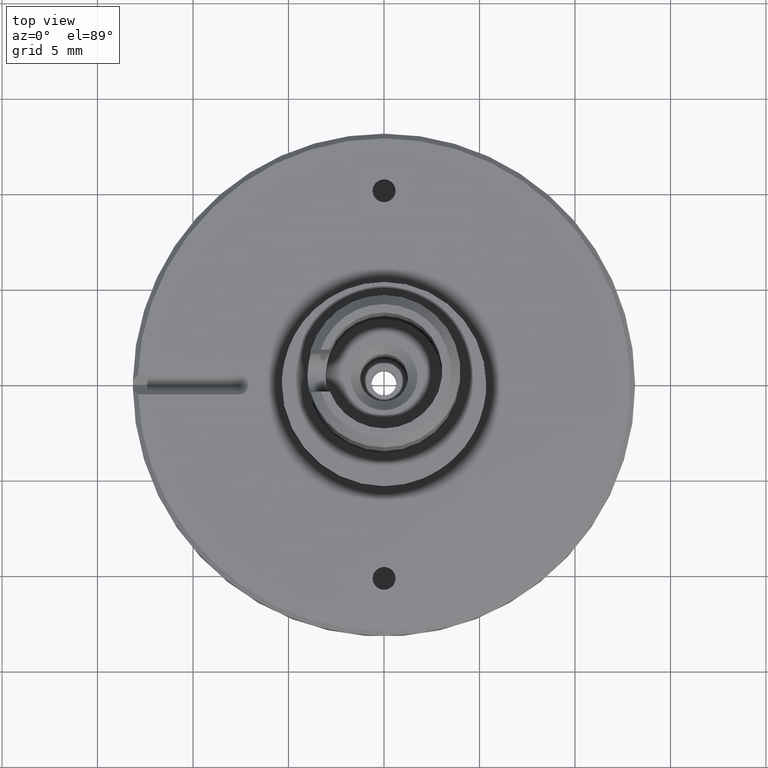
[diagram: clean part render]
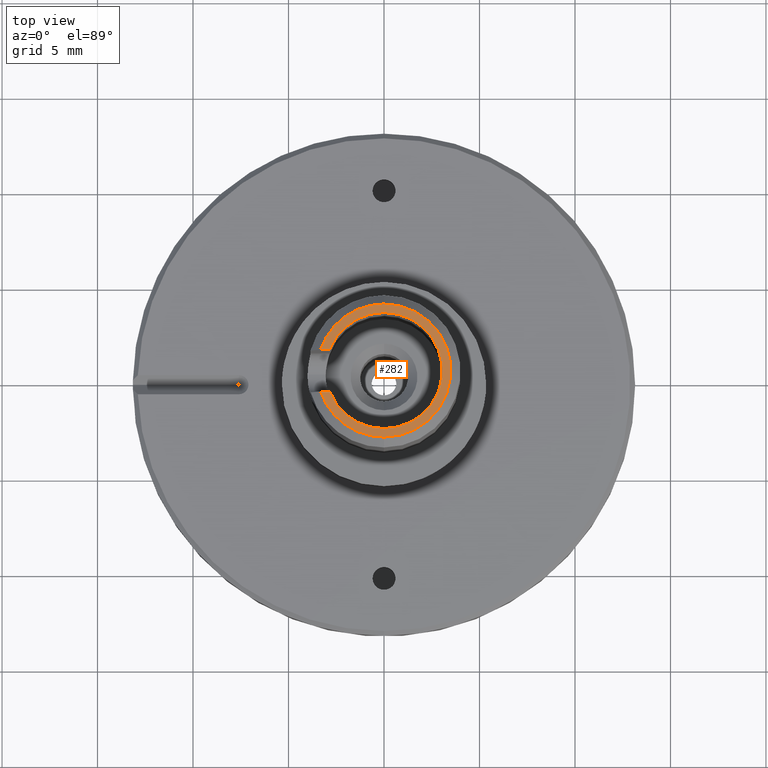
[diagram: same view with one face highlighted and labeled with its STEP entity id]
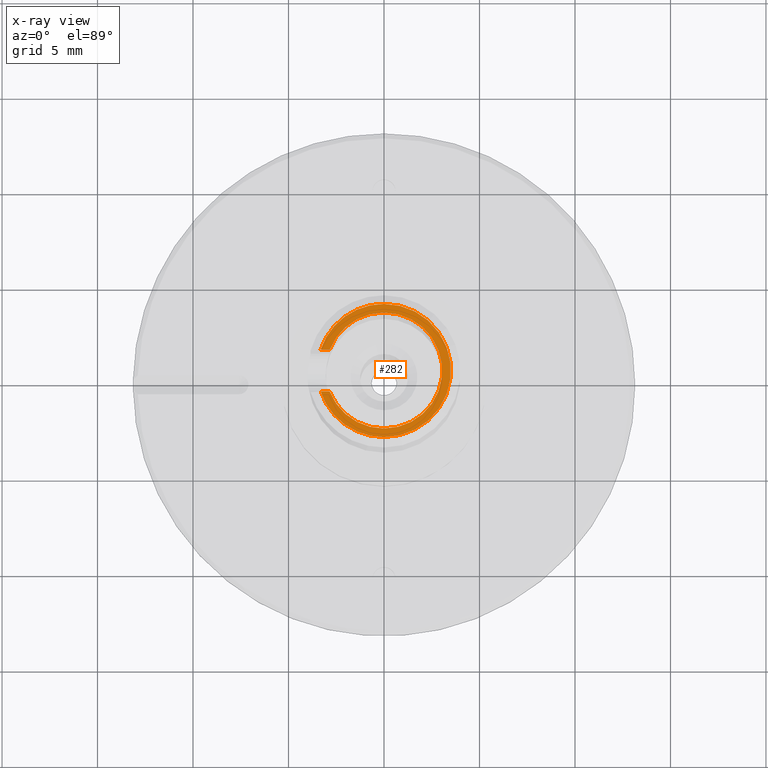
[diagram: x-ray of the same camera — body ghosted, the highlighted face saturated]
A machine part, top view. The second image highlights one B-rep face of the part: STEP entity #282.
The next image is the same camera in x-ray: the body ghosted, the highlighted face saturated — about 0% of this face is hidden behind the body in this view.
In plain terms, the highlighted planar face has unit normal (-0, 0.0706, 0.9975).
Its self-contained STEP definition (entity closure, byte-faithful):
#23 = ORIENTED_EDGE ( 'NONE', *, *, #1702, .T. ) ;
#31 = VERTEX_POINT ( 'NONE', #1358 ) ;
#52 = EDGE_CURVE ( 'NONE', #1645, #31, #1005, .T. ) ;
#55 = CARTESIAN_POINT ( 'NONE',  ( 4.286263796478413357E-16, -2.861962109038564517, 9.135103017454950347 ) ) ;
#59 = CARTESIAN_POINT ( 'NONE',  ( 0.08867522749999982856, -0.4679553973408257517, 8.965598251419219622 ) ) ;
#60 = DIRECTION ( 'NONE',  ( 0.000000000000000000, -0.9975027964197471508, 0.07062698588205740258 ) ) ;
#74 = DIRECTION ( 'NONE',  ( -0.000000000000000000, 0.07062698593101959799, 0.9975027964162804794 ) ) ;
#141 = CARTESIAN_POINT ( 'NONE',  ( 7.624983033006734675E-30, 0.6292976779807042398, 8.887908566727491078 ) ) ;
#188 = CARTESIAN_POINT ( 'NONE',  ( -3.322649544717420689, -0.4679553976612461086, 8.965598251339075730 ) ) ;
#197 = DIRECTION ( 'NONE',  ( 1.000000000000000000, 0.000000000000000000, 0.000000000000000000 ) ) ;
#205 = CIRCLE ( 'NONE', #1151, 3.499999999561182129 ) ;
#220 = ORIENTED_EDGE ( 'NONE', *, *, #1582, .T. ) ;
#245 = CARTESIAN_POINT ( 'NONE',  ( 0.000000000000000000, 0.6292976775073111373, 8.887908566950203593 ) ) ;
#258 = ORIENTED_EDGE ( 'NONE', *, *, #527, .T. ) ;
#282 = ADVANCED_FACE ( 'NONE', ( #708 ), #1251, .T. ) ;
#289 = EDGE_CURVE ( 'NONE', #1327, #1645, #609, .T. ) ;
#296 = LINE ( 'NONE', #1004, #1246 ) ;
#302 = VERTEX_POINT ( 'NONE', #55 ) ;
#331 = DIRECTION ( 'NONE',  ( -1.000000000000000000, -0.000000000000000000, -0.000000000000000000 ) ) ;
#344 = LINE ( 'NONE', #59, #641 ) ;
#351 = AXIS2_PLACEMENT_3D ( 'NONE', #141, #936, #972 ) ;
#417 = VERTEX_POINT ( 'NONE', #1287 ) ;
#527 = EDGE_CURVE ( 'NONE', #417, #1482, #205, .T. ) ;
#581 = AXIS2_PLACEMENT_3D ( 'NONE', #1587, #1601, #1580 ) ;
#603 = DIRECTION ( 'NONE',  ( 0.000000000000000000, -0.9975027964162804794, 0.07062698593101955635 ) ) ;
#609 = CIRCLE ( 'NONE', #1701, 3.049999999680218732 ) ;
#614 = CIRCLE ( 'NONE', #351, 3.499999999561182129 ) ;
#623 = DIRECTION ( 'NONE',  ( 0.000000000000000000, -0.9975027964162804794, 0.07062698593101955635 ) ) ;
#641 = VECTOR ( 'NONE', #331, 1000.000000000000000 ) ;
#708 = FACE_OUTER_BOUND ( 'NONE', #1107, .T. ) ;
#734 = CARTESIAN_POINT ( 'NONE',  ( -3.322649544683856426, 1.726550753675826222, 8.810218882366861237 ) ) ;
#742 = DIRECTION ( 'NONE',  ( -0.000000000000000000, 0.07062698593101959799, 0.9975027964162804794 ) ) ;
#781 = EDGE_CURVE ( 'NONE', #31, #913, #1034, .T. ) ;
#798 = ORIENTED_EDGE ( 'NONE', *, *, #289, .F. ) ;
#827 = ORIENTED_EDGE ( 'NONE', *, *, #1089, .T. ) ;
#831 = ORIENTED_EDGE ( 'NONE', *, *, #52, .F. ) ;
#845 = CARTESIAN_POINT ( 'NONE',  ( -2.844731972652642771, 1.726550754051741521, 8.810218882391634310 ) ) ;
#898 = AXIS2_PLACEMENT_3D ( 'NONE', #1207, #1746, #1222 ) ;
#913 = VERTEX_POINT ( 'NONE', #845 ) ;
#936 = DIRECTION ( 'NONE',  ( 2.471987883589681325E-16, 0.07062698593098648558, 0.9975027964162829219 ) ) ;
#967 = DIRECTION ( 'NONE',  ( 2.471987883589681325E-16, 0.07062698593098648558, 0.9975027964162829219 ) ) ;
#972 = DIRECTION ( 'NONE',  ( 0.000000000000000000, 0.9975027964162828109, -0.07062698593098633293 ) ) ;
#1004 = CARTESIAN_POINT ( 'NONE',  ( 0.08867522750000003673, 1.726550753340822864, 8.810218882580777233 ) ) ;
#1005 = CIRCLE ( 'NONE', #581, 3.049999999680218732 ) ;
#1015 = EDGE_CURVE ( 'NONE', #1385, #302, #614, .T. ) ;
#1034 = CIRCLE ( 'NONE', #1703, 3.049999999680218732 ) ;
#1089 = EDGE_CURVE ( 'NONE', #1482, #913, #296, .T. ) ;
#1107 = EDGE_LOOP ( 'NONE', ( #220, #1114, #23, #258, #827, #1489, #831, #798 ) ) ;
#1113 = CARTESIAN_POINT ( 'NONE',  ( -3.363585442000000203, 4.162452582999999429, 8.637747782999998236 ) ) ;
#1114 = ORIENTED_EDGE ( 'NONE', *, *, #1015, .T. ) ;
#1119 = CARTESIAN_POINT ( 'NONE',  ( 0.000000000000000000, 0.6292976775073111373, 8.887908566950203593 ) ) ;
#1151 = AXIS2_PLACEMENT_3D ( 'NONE', #1484, #967, #1464 ) ;
#1207 = CARTESIAN_POINT ( 'NONE',  ( 7.624983033006734675E-30, 0.6292976779807042398, 8.887908566727491078 ) ) ;
#1217 = CIRCLE ( 'NONE', #898, 3.499999999561182129 ) ;
#1222 = DIRECTION ( 'NONE',  ( 0.000000000000000000, 0.9975027964162828109, -0.07062698593098633293 ) ) ;
#1246 = VECTOR ( 'NONE', #197, 1000.000000000000000 ) ;
#1251 = PLANE ( 'NONE',  #1378 ) ;
#1256 = DIRECTION ( 'NONE',  ( -0.000000000000000000, 0.07062698588205741645, 0.9975027964197472619 ) ) ;
#1287 = CARTESIAN_POINT ( 'NONE',  ( -6.179969713643226955E-17, 4.120557464999970776, 8.640714116000030032 ) ) ;
#1327 = VERTEX_POINT ( 'NONE', #1383 ) ;
#1358 = CARTESIAN_POINT ( 'NONE',  ( 3.735172737007807997E-16, 3.671681206257983554, 8.672496259883178737 ) ) ;
#1378 = AXIS2_PLACEMENT_3D ( 'NONE', #1113, #1256, #60 ) ;
#1383 = CARTESIAN_POINT ( 'NONE',  ( -2.844731973264478686, -0.4679553974587902232, 8.965598251397020491 ) ) ;
#1385 = VERTEX_POINT ( 'NONE', #188 ) ;
#1464 = DIRECTION ( 'NONE',  ( 0.000000000000000000, 0.9975027964162828109, -0.07062698593098633293 ) ) ;
#1482 = VERTEX_POINT ( 'NONE', #734 ) ;
#1484 = CARTESIAN_POINT ( 'NONE',  ( 7.624983033006734675E-30, 0.6292976779807042398, 8.887908566727491078 ) ) ;
#1489 = ORIENTED_EDGE ( 'NONE', *, *, #781, .F. ) ;
#1550 = CARTESIAN_POINT ( 'NONE',  ( 0.000000000000000000, -2.413085851243361724, 9.103320874017228448 ) ) ;
#1580 = DIRECTION ( 'NONE',  ( 0.000000000000000000, -0.9975027964162804794, 0.07062698593101955635 ) ) ;
#1582 = EDGE_CURVE ( 'NONE', #1327, #1385, #344, .T. ) ;
#1587 = CARTESIAN_POINT ( 'NONE',  ( 0.000000000000000000, 0.6292976775073111373, 8.887908566950203593 ) ) ;
#1601 = DIRECTION ( 'NONE',  ( -0.000000000000000000, 0.07062698593101959799, 0.9975027964162804794 ) ) ;
#1645 = VERTEX_POINT ( 'NONE', #1550 ) ;
#1701 = AXIS2_PLACEMENT_3D ( 'NONE', #1119, #742, #603 ) ;
#1702 = EDGE_CURVE ( 'NONE', #302, #417, #1217, .T. ) ;
#1703 = AXIS2_PLACEMENT_3D ( 'NONE', #245, #74, #623 ) ;
#1746 = DIRECTION ( 'NONE',  ( 2.471987883589681325E-16, 0.07062698593098648558, 0.9975027964162829219 ) ) ;